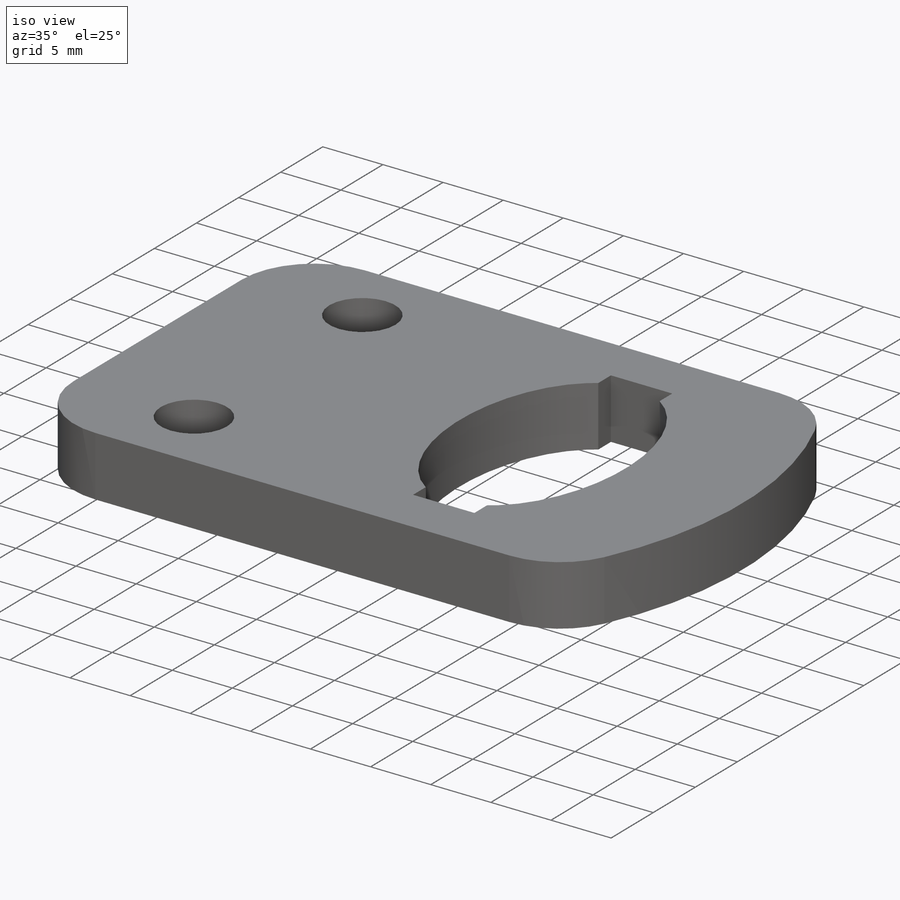
[diagram: iso view]
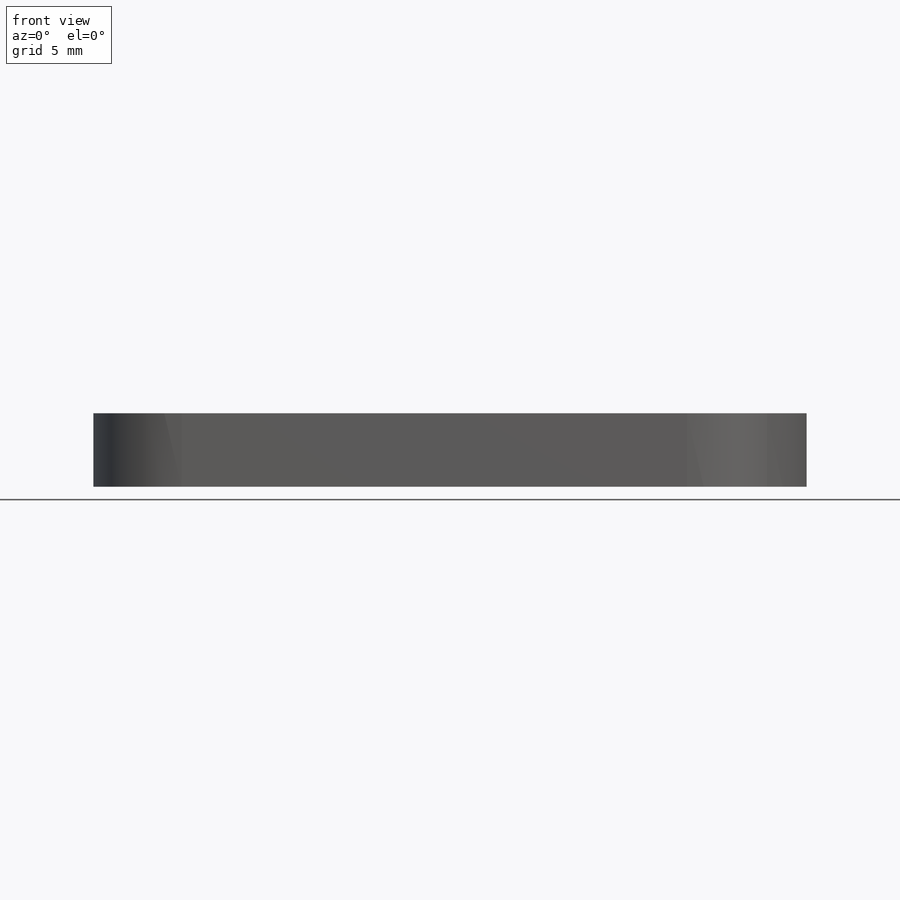
[diagram: front view]
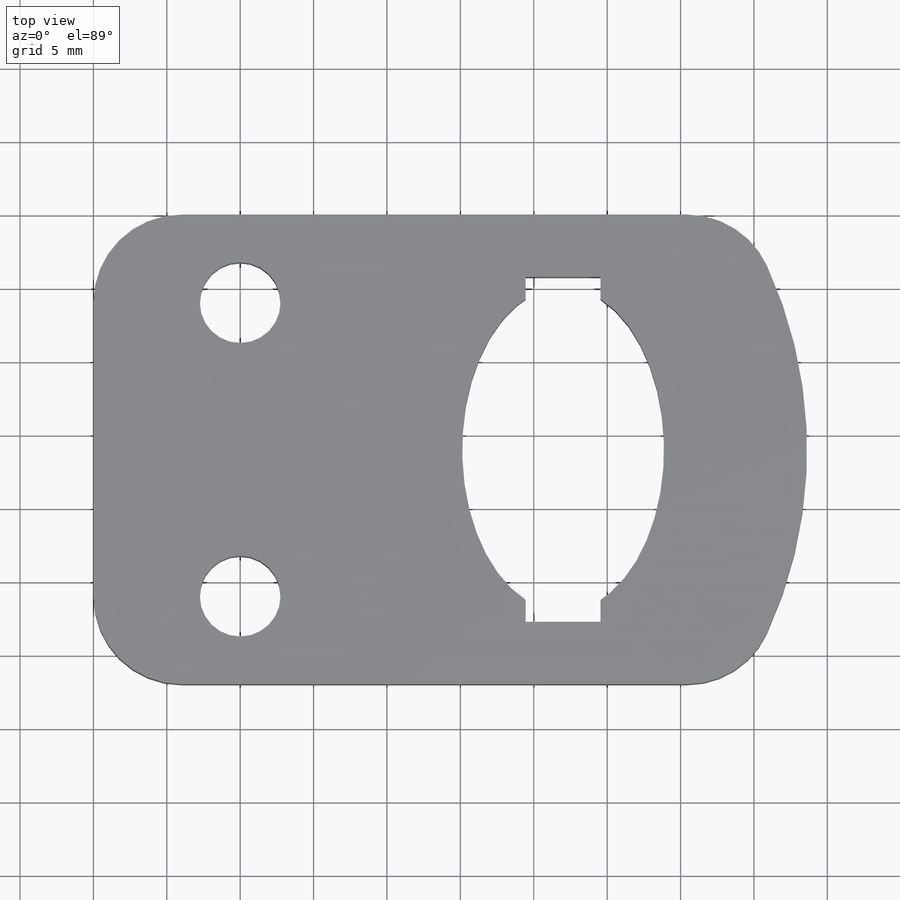
[diagram: top view]
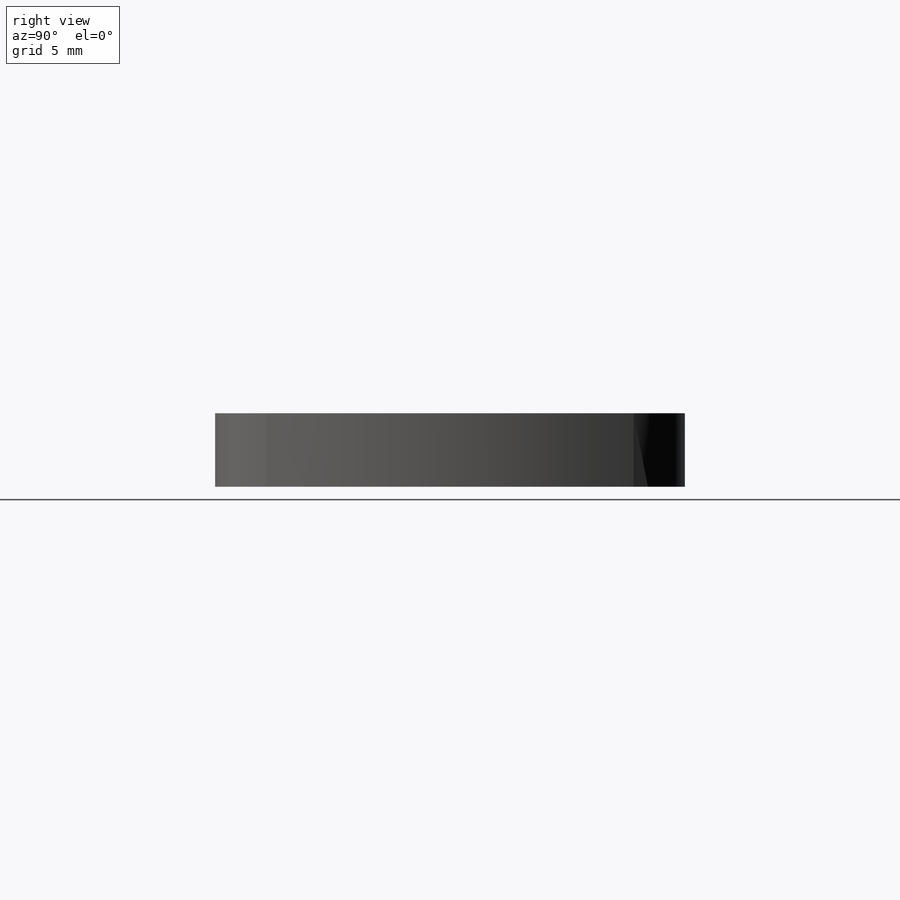
[diagram: right view]
SOLIDWORKS PART (.sldprt)
format: sldprt  version: not decoded by parser v0  size: 192,000 bytes
history: native  units: mm
features: sketch x3, extrude x2, material x1, cut_extrude x1, fillet x1 (+11 scaffold rows collapsed)
feature tree (19):
  scaffold x11  (default folders/planes/origin — collapsed)
  material  "Material <not specified>"
  sketch  "Sketch1"  dims[c1.D2=8.0mm c1.D3=15.0mm c1.D1=13.0mm c1.D4=~71.555207mm c1.D5=5.0mm c1.D6=3.0mm c1.D7=1.5mm c1.D8=8.0mm c2.D4=32.0mm c2.D1=44.0mm c2.D2=5.0mm]
  extrude  "Boss-Extrude1"  Depth=32mm
  sketch  "Sketch2"  dims[c1.D8=5.5mm c1.D1=5.1mm c1.D2=23.5mm c1.D3=20.5mm c1.D4=13.75mm c1.D5=20.0mm c1.D6=8.0mm c1.D7=20.0mm c1.D9=10.0mm c2.D5=12.0mm c2.D6=10.0mm]
  cut_extrude  "Cut-Extrude1"  [1 undecoded]
  sketch  "Sketch3"  dims[D1=30.0mm]
  extrude  "Boss-Extrude2"  [1 undecoded]
  fillet  "Fillet1"  Radius=6mm
decode coverage: 5 of 7 modeling features carry decoded parameters
note: ~ marks probable driven/reference dimensions
note: 2 parameter values undecoded
note: suppression state not decoded; provenance and decode notes live in map.json
